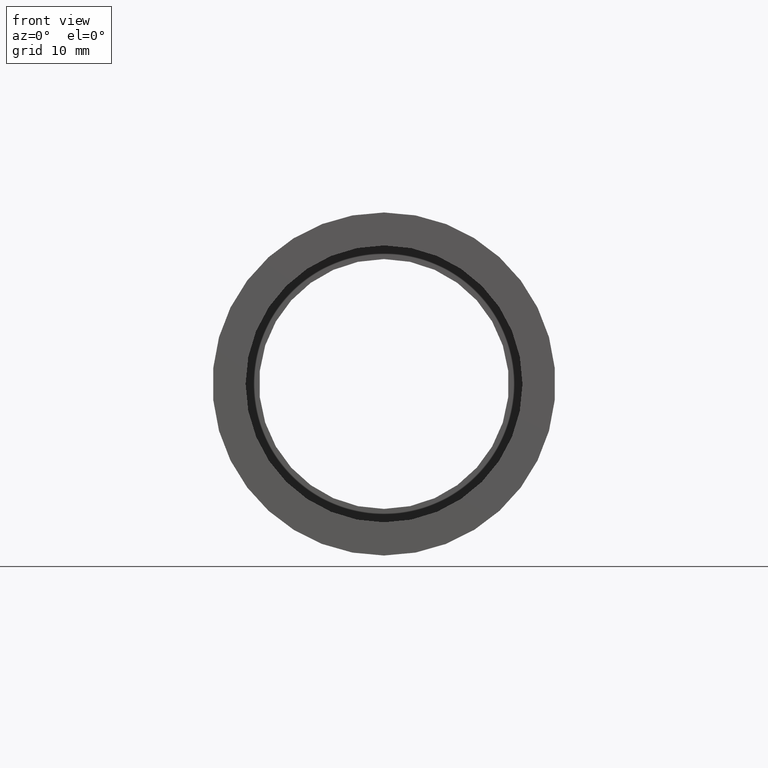
[diagram: clean part render]
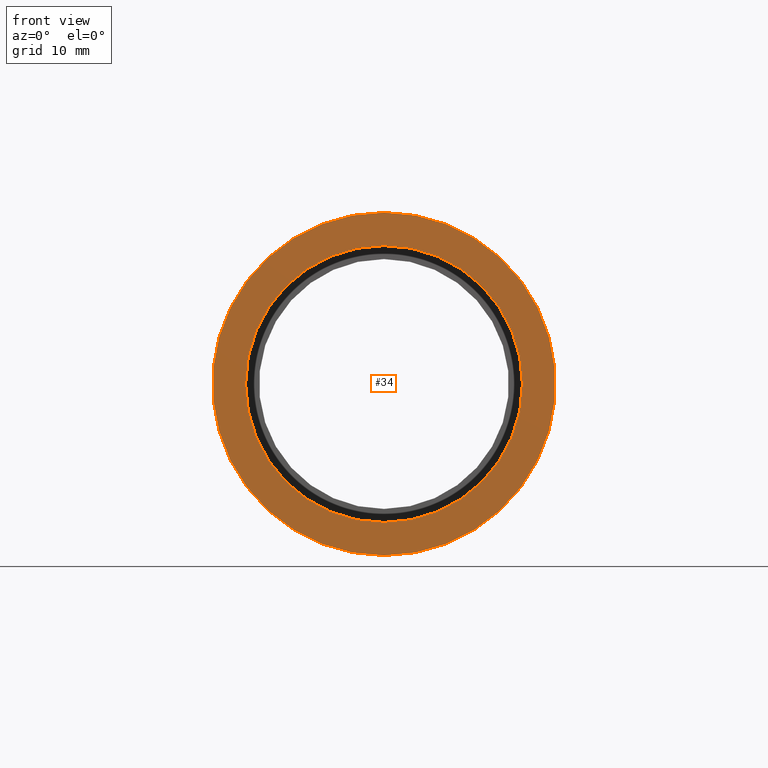
[diagram: same view with one face highlighted and labeled with its STEP entity id]
A machine part, front view. The second image highlights one B-rep face of the part: STEP entity #34.
In plain terms, the highlighted planar face has unit normal (-0, 1, 0).
Its self-contained STEP definition (entity closure, byte-faithful):
#1 = VERTEX_POINT ( 'NONE', #105 ) ;
#34 = ADVANCED_FACE ( 'NONE', ( #619, #385 ), #433, .F. ) ;
#44 = EDGE_CURVE ( 'NONE', #489, #121, #156, .T. ) ;
#64 = EDGE_CURVE ( 'NONE', #121, #489, #109, .T. ) ;
#76 = CARTESIAN_POINT ( 'NONE',  ( 3.110602869834279200E-015, -2.775557561562891400E-014, -25.40000000000002000 ) ) ;
#105 = CARTESIAN_POINT ( 'NONE',  ( 2.510525938252076500E-015, -2.775557561562891400E-014, -20.50000000000002100 ) ) ;
#108 = CARTESIAN_POINT ( 'NONE',  ( 0.0000000000000000000, -2.775557561562891400E-014, 0.0000000000000000000 ) ) ;
#109 = CIRCLE ( 'NONE', #164, 25.40000000000002000 ) ;
#121 = VERTEX_POINT ( 'NONE', #211 ) ;
#122 = CARTESIAN_POINT ( 'NONE',  ( 0.0000000000000000000, -2.775557561562891400E-014, 20.50000000000002100 ) ) ;
#133 = ORIENTED_EDGE ( 'NONE', *, *, #283, .T. ) ;
#146 = EDGE_CURVE ( 'NONE', #1, #490, #158, .T. ) ;
#149 = CIRCLE ( 'NONE', #442, 20.50000000000002100 ) ;
#156 = CIRCLE ( 'NONE', #532, 25.40000000000002000 ) ;
#158 = CIRCLE ( 'NONE', #595, 20.50000000000002100 ) ;
#159 = CARTESIAN_POINT ( 'NONE',  ( 0.0000000000000000000, -2.775557561562891400E-014, 0.0000000000000000000 ) ) ;
#164 = AXIS2_PLACEMENT_3D ( 'NONE', #108, #440, #398 ) ;
#211 = CARTESIAN_POINT ( 'NONE',  ( 0.0000000000000000000, -2.775557561562891400E-014, 25.40000000000002000 ) ) ;
#214 = DIRECTION ( 'NONE',  ( 0.0000000000000000000, 0.0000000000000000000, 1.000000000000000000 ) ) ;
#228 = EDGE_LOOP ( 'NONE', ( #133, #575 ) ) ;
#252 = ORIENTED_EDGE ( 'NONE', *, *, #44, .F. ) ;
#283 = EDGE_CURVE ( 'NONE', #490, #1, #149, .T. ) ;
#285 = ORIENTED_EDGE ( 'NONE', *, *, #64, .F. ) ;
#352 = DIRECTION ( 'NONE',  ( -0.0000000000000000000, 1.000000000000000000, -0.0000000000000000000 ) ) ;
#385 = FACE_BOUND ( 'NONE', #228, .T. ) ;
#388 = CARTESIAN_POINT ( 'NONE',  ( 25.40000000000002000, -1.454715626710879400E-014, 0.0000000000000000000 ) ) ;
#390 = DIRECTION ( 'NONE',  ( -0.0000000000000000000, 1.000000000000000000, 0.0000000000000000000 ) ) ;
#395 = DIRECTION ( 'NONE',  ( -0.0000000000000000000, 1.000000000000000000, -0.0000000000000000000 ) ) ;
#398 = DIRECTION ( 'NONE',  ( 0.0000000000000000000, 0.0000000000000000000, 1.000000000000000000 ) ) ;
#433 = PLANE ( 'NONE',  #606 ) ;
#439 = DIRECTION ( 'NONE',  ( 0.0000000000000000000, 0.0000000000000000000, 1.000000000000000000 ) ) ;
#440 = DIRECTION ( 'NONE',  ( -0.0000000000000000000, 1.000000000000000000, -0.0000000000000000000 ) ) ;
#441 = EDGE_LOOP ( 'NONE', ( #285, #252 ) ) ;
#442 = AXIS2_PLACEMENT_3D ( 'NONE', #605, #558, #465 ) ;
#465 = DIRECTION ( 'NONE',  ( 0.0000000000000000000, 0.0000000000000000000, 1.000000000000000000 ) ) ;
#488 = DIRECTION ( 'NONE',  ( 0.0000000000000000000, 0.0000000000000000000, 1.000000000000000000 ) ) ;
#489 = VERTEX_POINT ( 'NONE', #76 ) ;
#490 = VERTEX_POINT ( 'NONE', #122 ) ;
#504 = CARTESIAN_POINT ( 'NONE',  ( 0.0000000000000000000, -2.775557561562891400E-014, 0.0000000000000000000 ) ) ;
#532 = AXIS2_PLACEMENT_3D ( 'NONE', #159, #395, #488 ) ;
#558 = DIRECTION ( 'NONE',  ( -0.0000000000000000000, 1.000000000000000000, -0.0000000000000000000 ) ) ;
#575 = ORIENTED_EDGE ( 'NONE', *, *, #146, .T. ) ;
#595 = AXIS2_PLACEMENT_3D ( 'NONE', #504, #352, #214 ) ;
#605 = CARTESIAN_POINT ( 'NONE',  ( 0.0000000000000000000, -2.775557561562891400E-014, 0.0000000000000000000 ) ) ;
#606 = AXIS2_PLACEMENT_3D ( 'NONE', #388, #390, #439 ) ;
#619 = FACE_OUTER_BOUND ( 'NONE', #441, .T. ) ;